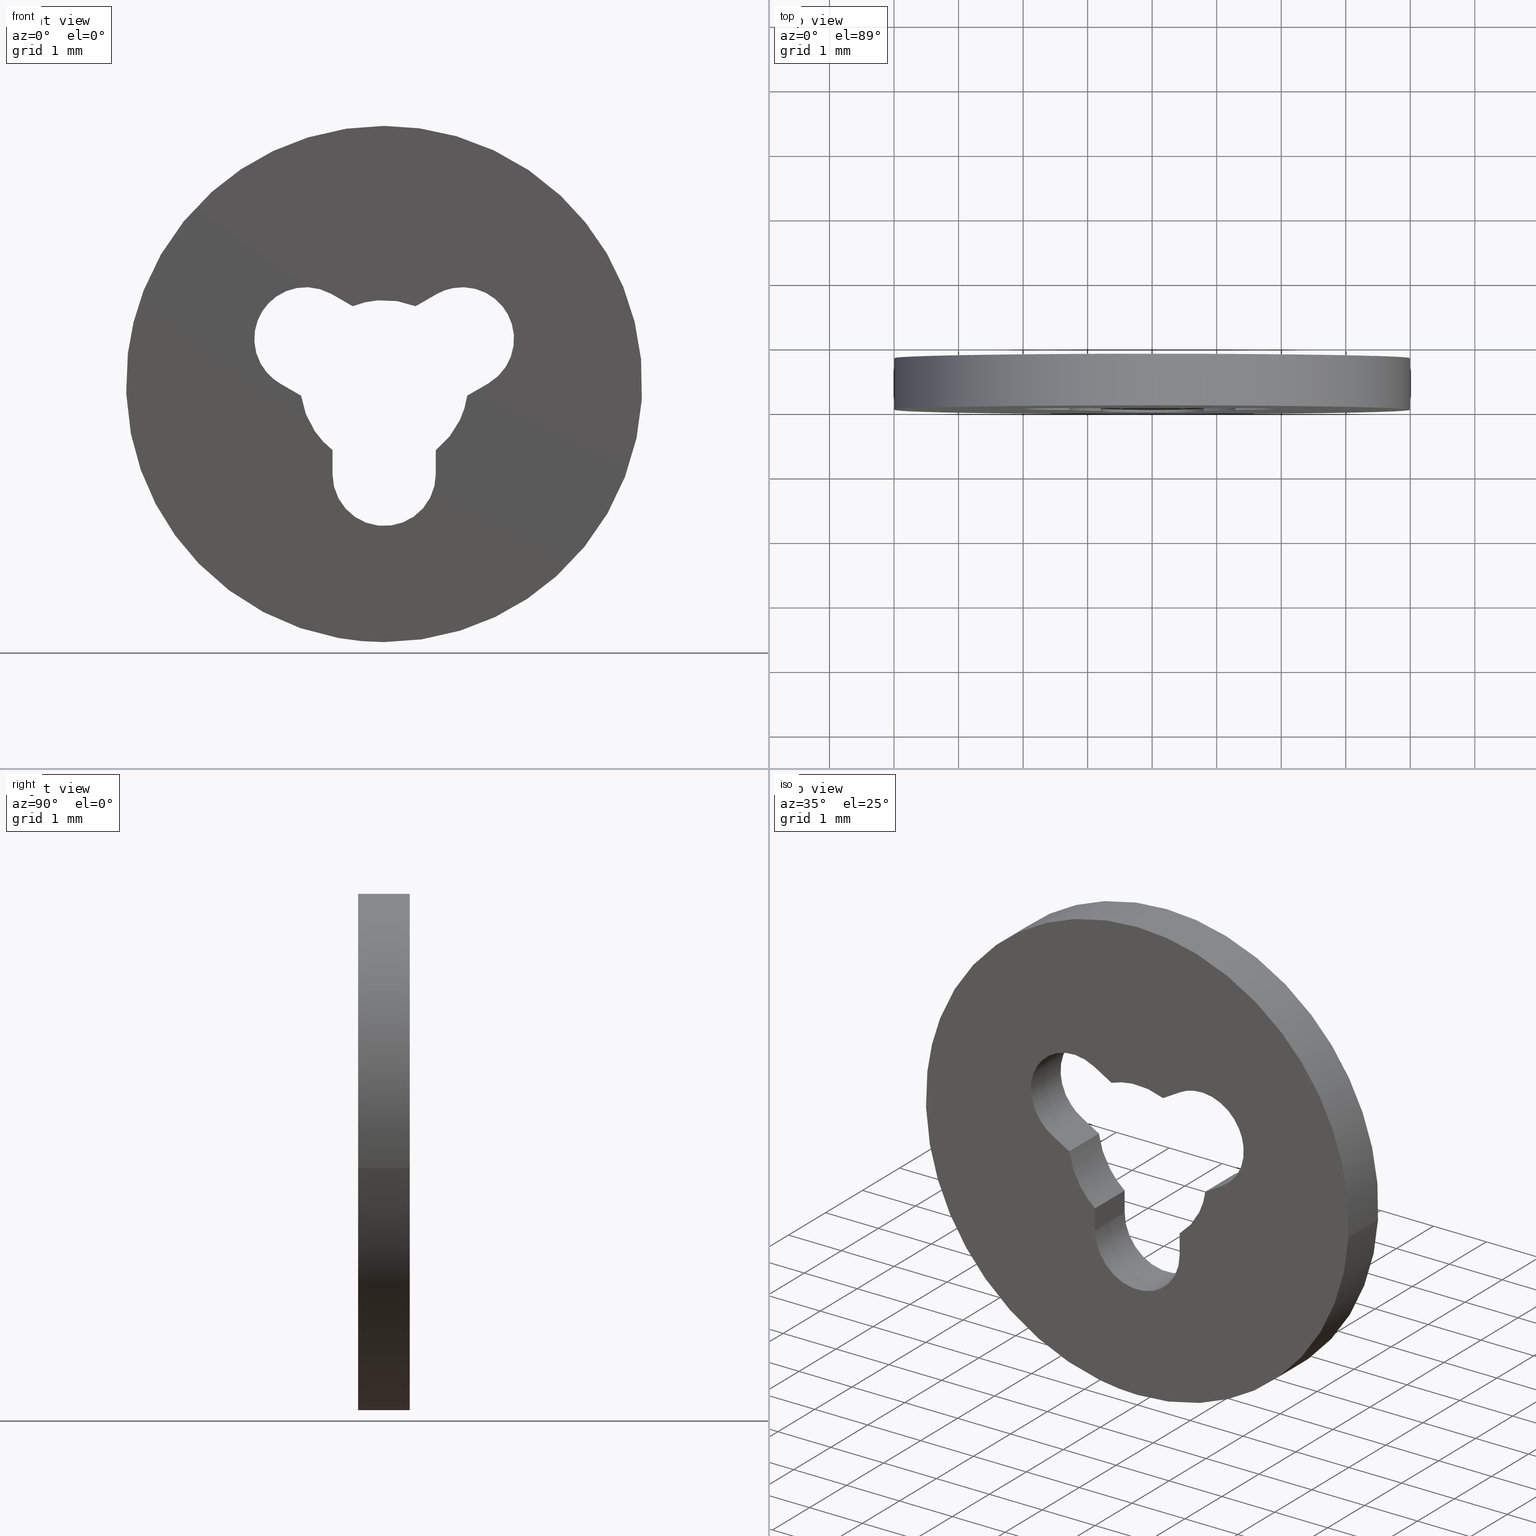
[diagram: canonical four-view strip — front | top / right | iso, engineering-drawing reading convention]
A machine part, canonical four-view strip (front | top / right | iso — engineering-drawing reading convention). The complete STEP part file that produces these views, byte-faithful:
ISO-10303-21;
HEADER;
/****************************************************************
 * Generated by software with PDE/Lib inside                    *
 * PDElib Version 4.4.1-0003, patched  Thursday August 19 11:58 *
 * International Technegroup Inc. (www.iti-oh.com)              *
 ****************************************************************/
FILE_DESCRIPTION((''),'2;1');
FILE_NAME('','2005-07-15T17:44:51',(''),(''),'','CADfix','');
FILE_SCHEMA(('AUTOMOTIVE_DESIGN'));
ENDSEC;
DATA;
#5=APPLICATION_CONTEXT('automotive design');
#6=APPLICATION_PROTOCOL_DEFINITION('Draft International Standard','automotive_design',1998,#5);
#7=PRODUCT_CONTEXT('None',#5,'mechanical');
#8=PRODUCT('washer','','None',(#7));
#9=PRODUCT_RELATED_PRODUCT_CATEGORY('part','description',(#8));
#10=PRODUCT_DEFINITION_FORMATION('None','None',#8);
#11=PRODUCT_DEFINITION_CONTEXT('part definition',#5,'design');
#12=PRODUCT_DEFINITION('None','None',#10,#11);
#18=(NAMED_UNIT(*)PLANE_ANGLE_UNIT()SI_UNIT($,.RADIAN.));
#19=DIMENSIONAL_EXPONENTS(0.0,0.0,0.0,0.0,0.0,0.0,0.0);
#20=PLANE_ANGLE_MEASURE_WITH_UNIT(PLANE_ANGLE_MEASURE(0.017453292500000),#18);
#24=(CONVERSION_BASED_UNIT('DEGREE',#20)NAMED_UNIT(#19)PLANE_ANGLE_UNIT());
#28=(NAMED_UNIT(*)SI_UNIT($,.STERADIAN.)SOLID_ANGLE_UNIT());
#32=(LENGTH_UNIT()NAMED_UNIT(*)SI_UNIT(.MILLI.,.METRE.));
#34=UNCERTAINTY_MEASURE_WITH_UNIT(LENGTH_MEASURE(0.001000000000000),#32,'DISTANCE_ACCURACY_VALUE','');
#36=(GEOMETRIC_REPRESENTATION_CONTEXT(3)GLOBAL_UNCERTAINTY_ASSIGNED_CONTEXT((#34))GLOBAL_UNIT_ASSIGNED_CONTEXT((#24,#28,#32))REPRESENTATION_CONTEXT('None','None'));
#37=AXIS2_PLACEMENT_3D('',#38,#39,#40);
#38=CARTESIAN_POINT('',(0.0,0.0,0.0));
#39=DIRECTION('',(0.0,0.0,1.0));
#40=DIRECTION('',(1.0,0.0,0.0));
#41=ADVANCED_BREP_SHAPE_REPRESENTATION('',(#37,#797),#36);
#42=PRODUCT_DEFINITION_SHAPE('','',#12);
#43=SHAPE_DEFINITION_REPRESENTATION(#42,#41);
#44=CARTESIAN_POINT('',(-3.972038105454666,0.820000000000024,0.472136938627034));
#45=CARTESIAN_POINT('',(-3.985550461794422,0.820000000000024,0.358458914551911));
#46=CARTESIAN_POINT('',(-3.992539193687467,0.820000000000024,0.244194158139428));
#47=CARTESIAN_POINT('',(-4.236733351826894,0.820000000000024,-3.748345035548039));
#48=CARTESIAN_POINT('',(-0.244194158139428,0.820000000000024,-3.992539193687467));
#49=CARTESIAN_POINT('',(3.748345035548039,0.820000000000024,-4.236733351826894));
#50=CARTESIAN_POINT('',(3.992539193687467,0.820000000000024,-0.244194158139428));
#51=CARTESIAN_POINT('',(-3.972038105454666,-0.020500000000001,0.472136938627034));
#52=CARTESIAN_POINT('',(-3.985550461794422,-0.020500000000001,0.358458914551911));
#53=CARTESIAN_POINT('',(-3.992539193687467,-0.020500000000001,0.244194158139428));
#54=CARTESIAN_POINT('',(-4.236733351826894,-0.020500000000001,-3.748345035548039));
#55=CARTESIAN_POINT('',(-0.244194158139428,-0.020500000000001,-3.992539193687467));
#56=CARTESIAN_POINT('',(3.748345035548039,-0.020500000000001,-4.236733351826894));
#57=CARTESIAN_POINT('',(3.992539193687467,-0.020500000000001,-0.244194158139428));
#65=(BOUNDED_SURFACE()B_SPLINE_SURFACE(2,1,((#44,#51),(#45,#52),(#46,#53),(#47,#54),(#48,#55),(#49,#56),(#50,#57)),.UNSPECIFIED.,.F.,.F.,.U.)B_SPLINE_SURFACE_WITH_KNOTS((3,2,2,3),(2,2),(0.0,0.265096679918781,6.892513677888299,13.519930675857820),(0.0,1.0),.UNSPECIFIED.)GEOMETRIC_REPRESENTATION_ITEM()RATIONAL_B_SPLINE_SURFACE(((0.977505800795127,0.977505800795127),(0.988284271247462,0.988284271247462),(1.0,1.0),(0.707106781186548,0.707106781186548),(1.0,1.0),(0.707106781186548,0.707106781186548),(1.0,1.0)))REPRESENTATION_ITEM('')SURFACE());
#66=CARTESIAN_POINT('',(-3.972038406107942,1.940217E-014,0.472134409249084));
#67=VERTEX_POINT('',#66);
#68=CARTESIAN_POINT('',(0.0,0.0,-4.0));
#69=VERTEX_POINT('',#68);
#70=CARTESIAN_POINT('',(-3.972038406107942,1.940217E-014,0.472134409249084));
#71=CARTESIAN_POINT('',(-4.000000000000001,0.0,0.236895200548656));
#72=CARTESIAN_POINT('',(-4.0,0.0,0.0));
#73=CARTESIAN_POINT('',(-4.000000000000000,0.0,-4.000000000000000));
#74=CARTESIAN_POINT('',(0.0,0.0,-4.0));
#82=(BOUNDED_CURVE()B_SPLINE_CURVE(2,(#70,#71,#72,#73,#74),.UNSPECIFIED.,.F.,.U.)B_SPLINE_CURVE_WITH_KNOTS((3,2,3),(0.229562581136241,0.250000000000000,0.500000000000000),.UNSPECIFIED.)CURVE()GEOMETRIC_REPRESENTATION_ITEM()RATIONAL_B_SPLINE_CURVE((0.956026965128767,0.976056074419019,1.0,0.707106781186548,1.0))REPRESENTATION_ITEM(''));
#83=EDGE_CURVE('',#67,#69,#82,.T.);
#84=ORIENTED_EDGE('',*,*,#83,.F.);
#85=CARTESIAN_POINT('',(-3.972038402399532,0.800000000000023,0.472134440447886));
#86=VERTEX_POINT('',#85);
#87=CARTESIAN_POINT('',(-3.972038402399532,0.800000000000023,0.472134440447886));
#88=CARTESIAN_POINT('',(-3.972038406107942,1.940217E-014,0.472134409249084));
#89=QUASI_UNIFORM_CURVE('',1,(#87,#88),.UNSPECIFIED.,.F.,.U.);
#90=EDGE_CURVE('',#86,#67,#89,.T.);
#91=ORIENTED_EDGE('',*,*,#90,.F.);
#92=CARTESIAN_POINT('',(0.0,0.800000000000023,-4.0));
#93=VERTEX_POINT('',#92);
#94=CARTESIAN_POINT('',(-3.972038402399532,0.800000000000023,0.472134440447886));
#95=CARTESIAN_POINT('',(-4.000000000000000,0.800000000000023,0.236895216312969));
#96=CARTESIAN_POINT('',(-4.0,0.800000000000023,0.0));
#97=CARTESIAN_POINT('',(-4.000000000000000,0.800000000000023,-4.000000000000000));
#98=CARTESIAN_POINT('',(0.0,0.800000000000023,-4.0));
#106=(BOUNDED_CURVE()B_SPLINE_CURVE(2,(#94,#95,#96,#97,#98),.UNSPECIFIED.,.F.,.U.)B_SPLINE_CURVE_WITH_KNOTS((3,2,3),(0.229562579808786,0.250000000000000,0.500000000000000),.UNSPECIFIED.)CURVE()GEOMETRIC_REPRESENTATION_ITEM()RATIONAL_B_SPLINE_CURVE((0.956026962526900,0.976056072863809,1.0,0.707106781186548,1.0))REPRESENTATION_ITEM(''));
#107=EDGE_CURVE('',#86,#93,#106,.T.);
#108=ORIENTED_EDGE('',*,*,#107,.T.);
#109=CARTESIAN_POINT('',(3.992539279994037,0.800000000000023,-0.244192747031311));
#110=VERTEX_POINT('',#109);
#111=CARTESIAN_POINT('',(0.0,0.800000000000023,-4.0));
#112=CARTESIAN_POINT('',(3.762825600026705,0.800000000000023,-4.0));
#113=CARTESIAN_POINT('',(3.992539279994037,0.800000000000023,-0.244192747031311));
#121=(BOUNDED_CURVE()B_SPLINE_CURVE(2,(#111,#112,#113),.UNSPECIFIED.,.F.,.U.)B_SPLINE_CURVE_WITH_KNOTS((3,3),(0.500000000000000,0.739333023226263),.UNSPECIFIED.)CURVE()GEOMETRIC_REPRESENTATION_ITEM()RATIONAL_B_SPLINE_CURVE((1.0,0.719603921835620,0.976072172374189))REPRESENTATION_ITEM(''));
#122=EDGE_CURVE('',#93,#110,#121,.T.);
#123=ORIENTED_EDGE('',*,*,#122,.T.);
#124=CARTESIAN_POINT('',(3.992539281071392,1.277450E-014,-0.244192729416499));
#125=VERTEX_POINT('',#124);
#126=CARTESIAN_POINT('',(3.992539279994037,0.800000000000023,-0.244192747031311));
#127=CARTESIAN_POINT('',(3.992539281071392,1.277450E-014,-0.244192729416499));
#128=QUASI_UNIFORM_CURVE('',1,(#126,#127),.UNSPECIFIED.,.F.,.U.);
#129=EDGE_CURVE('',#110,#125,#128,.T.);
#130=ORIENTED_EDGE('',*,*,#129,.T.);
#131=CARTESIAN_POINT('',(0.0,0.0,-4.0));
#132=CARTESIAN_POINT('',(3.762825616659059,0.0,-4.000000000000001));
#133=CARTESIAN_POINT('',(3.992539281071392,1.277450E-014,-0.244192729416499));
#141=(BOUNDED_CURVE()B_SPLINE_CURVE(2,(#131,#132,#133),.UNSPECIFIED.,.F.,.U.)B_SPLINE_CURVE_WITH_KNOTS((3,3),(0.500000000000000,0.739333023987528),.UNSPECIFIED.)CURVE()GEOMETRIC_REPRESENTATION_ITEM()RATIONAL_B_SPLINE_CURVE((1.0,0.719603920943743,0.976072174005725))REPRESENTATION_ITEM(''));
#142=EDGE_CURVE('',#69,#125,#141,.T.);
#143=ORIENTED_EDGE('',*,*,#142,.F.);
#144=EDGE_LOOP('',(#84,#91,#108,#123,#130,#143));
#145=FACE_OUTER_BOUND('',#144,.T.);
#146=ADVANCED_FACE('',(#145),#65,.T.);
#147=CARTESIAN_POINT('',(3.992539193687467,0.820000000000024,-0.244194158139428));
#148=CARTESIAN_POINT('',(4.236733351826894,0.820000000000024,3.748345035548039));
#149=CARTESIAN_POINT('',(0.244194158139428,0.820000000000024,3.992539193687467));
#150=CARTESIAN_POINT('',(-3.526173963358004,0.820000000000024,4.223144786930110));
#151=CARTESIAN_POINT('',(-3.972038105454666,0.820000000000024,0.472136938627034));
#152=CARTESIAN_POINT('',(3.992539193687467,-0.020500000000001,-0.244194158139428));
#153=CARTESIAN_POINT('',(4.236733351826894,-0.020500000000001,3.748345035548039));
#154=CARTESIAN_POINT('',(0.244194158139428,-0.020500000000001,3.992539193687467));
#155=CARTESIAN_POINT('',(-3.526173963358004,-0.020500000000001,4.223144786930110));
#156=CARTESIAN_POINT('',(-3.972038105454666,-0.020500000000001,0.472136938627034));
#164=(BOUNDED_SURFACE()B_SPLINE_SURFACE(2,1,((#147,#152),(#148,#153),(#149,#154),(#150,#155),(#151,#156)),.UNSPECIFIED.,.F.,.F.,.U.)B_SPLINE_SURFACE_WITH_KNOTS((3,2,3),(2,2),(0.0,6.627416997969518,12.989737316020260),(0.0,1.0),.UNSPECIFIED.)GEOMETRIC_REPRESENTATION_ITEM()RATIONAL_B_SPLINE_SURFACE(((1.0,1.0),(0.707106781186548,0.707106781186548),(1.0,1.0),(0.718822509939086,0.718822509939086),(0.977505800795127,0.977505800795127)))REPRESENTATION_ITEM('')SURFACE());
#165=CARTESIAN_POINT('',(0.0,0.0,4.0));
#166=VERTEX_POINT('',#165);
#167=CARTESIAN_POINT('',(0.0,0.0,4.0));
#168=CARTESIAN_POINT('',(-3.552700382076046,0.0,4.0));
#169=CARTESIAN_POINT('',(-3.972038406107942,1.940217E-014,0.472134409249084));
#177=(BOUNDED_CURVE()B_SPLINE_CURVE(2,(#167,#168,#169),.UNSPECIFIED.,.F.,.U.)B_SPLINE_CURVE_WITH_KNOTS((3,3),(0.0,0.229562581136241),.UNSPECIFIED.)CURVE()GEOMETRIC_REPRESENTATION_ITEM()RATIONAL_B_SPLINE_CURVE((1.0,0.731050706767529,0.956026965128767))REPRESENTATION_ITEM(''));
#178=EDGE_CURVE('',#166,#67,#177,.T.);
#179=ORIENTED_EDGE('',*,*,#178,.F.);
#180=CARTESIAN_POINT('',(3.992539281071392,1.277450E-014,-0.244192729416499));
#181=CARTESIAN_POINT('',(4.000000000000001,0.0,-0.122210336829911));
#182=CARTESIAN_POINT('',(4.0,0.0,0.0));
#183=CARTESIAN_POINT('',(4.000000000000000,0.0,4.000000000000000));
#184=CARTESIAN_POINT('',(0.0,0.0,4.0));
#192=(BOUNDED_CURVE()B_SPLINE_CURVE(2,(#180,#181,#182,#183,#184),.UNSPECIFIED.,.F.,.U.)B_SPLINE_CURVE_WITH_KNOTS((3,2,3),(0.739333023987528,0.750000000000000,1.0),.UNSPECIFIED.)CURVE()GEOMETRIC_REPRESENTATION_ITEM()RATIONAL_B_SPLINE_CURVE((0.976072174005725,0.987502860242804,1.0,0.707106781186548,1.0))REPRESENTATION_ITEM(''));
#193=EDGE_CURVE('',#125,#166,#192,.T.);
#194=ORIENTED_EDGE('',*,*,#193,.F.);
#195=ORIENTED_EDGE('',*,*,#129,.F.);
#196=CARTESIAN_POINT('',(0.0,0.800000000000023,4.0));
#197=VERTEX_POINT('',#196);
#198=CARTESIAN_POINT('',(3.992539279994037,0.800000000000023,-0.244192747031311));
#199=CARTESIAN_POINT('',(4.0,0.800000000000023,-0.122210345662012));
#200=CARTESIAN_POINT('',(4.0,0.800000000000023,0.0));
#201=CARTESIAN_POINT('',(4.000000000000000,0.800000000000023,4.000000000000000));
#202=CARTESIAN_POINT('',(0.0,0.800000000000023,4.0));
#210=(BOUNDED_CURVE()B_SPLINE_CURVE(2,(#198,#199,#200,#201,#202),.UNSPECIFIED.,.F.,.U.)B_SPLINE_CURVE_WITH_KNOTS((3,2,3),(0.739333023226263,0.750000000000000,1.0),.UNSPECIFIED.)CURVE()GEOMETRIC_REPRESENTATION_ITEM()RATIONAL_B_SPLINE_CURVE((0.976072172374189,0.987502859350927,1.0,0.707106781186548,1.0))REPRESENTATION_ITEM(''));
#211=EDGE_CURVE('',#110,#197,#210,.T.);
#212=ORIENTED_EDGE('',*,*,#211,.T.);
#213=CARTESIAN_POINT('',(0.0,0.800000000000023,4.0));
#214=CARTESIAN_POINT('',(-3.552700353974541,0.800000000000023,4.0));
#215=CARTESIAN_POINT('',(-3.972038402399532,0.800000000000023,0.472134440447886));
#223=(BOUNDED_CURVE()B_SPLINE_CURVE(2,(#213,#214,#215),.UNSPECIFIED.,.F.,.U.)B_SPLINE_CURVE_WITH_KNOTS((3,3),(0.0,0.229562579808786),.UNSPECIFIED.)CURVE()GEOMETRIC_REPRESENTATION_ITEM()RATIONAL_B_SPLINE_CURVE((1.0,0.731050708322738,0.956026962526900))REPRESENTATION_ITEM(''));
#224=EDGE_CURVE('',#197,#86,#223,.T.);
#225=ORIENTED_EDGE('',*,*,#224,.T.);
#226=ORIENTED_EDGE('',*,*,#90,.T.);
#227=EDGE_LOOP('',(#179,#194,#195,#212,#225,#226));
#228=FACE_OUTER_BOUND('',#227,.T.);
#229=ADVANCED_FACE('',(#228),#164,.T.);
#230=CARTESIAN_POINT('',(1.628633255187608,-0.039959998449446,0.016470334379051));
#231=CARTESIAN_POINT('',(1.271175532941079,-0.039959998449446,-0.189865261600788));
#232=CARTESIAN_POINT('',(1.628633255187608,0.839960019907141,0.016470334379051));
#233=CARTESIAN_POINT('',(1.271175532941079,0.839960019907141,-0.189865261600788));
#234=B_SPLINE_SURFACE_WITH_KNOTS('',1,1,((#230,#232),(#231,#233)),.UNSPECIFIED.,.F.,.F.,.U.,(2,2),(2,2),(0.0,0.412735267892183),(0.041708334948495,0.958291687403247),.UNSPECIFIED.);
#235=CARTESIAN_POINT('',(1.287408869895386,0.0,-0.180494880023472));
#236=VERTEX_POINT('',#235);
#237=CARTESIAN_POINT('',(1.612399990874480,0.0,0.007099994732456));
#238=VERTEX_POINT('',#237);
#239=CARTESIAN_POINT('',(1.287408869895386,0.0,-0.180494880023472));
#240=CARTESIAN_POINT('',(1.612399990874480,0.0,0.007099994732456));
#241=QUASI_UNIFORM_CURVE('',1,(#239,#240),.UNSPECIFIED.,.F.,.U.);
#242=EDGE_CURVE('',#236,#238,#241,.T.);
#243=ORIENTED_EDGE('',*,*,#242,.T.);
#244=CARTESIAN_POINT('',(1.612399990874480,0.800000000000000,0.007099994732456));
#245=VERTEX_POINT('',#244);
#246=CARTESIAN_POINT('',(1.612399990874480,0.800000000000000,0.007099994732456));
#247=CARTESIAN_POINT('',(1.612399990874480,0.0,0.007099994732456));
#248=QUASI_UNIFORM_CURVE('',1,(#246,#247),.UNSPECIFIED.,.F.,.U.);
#249=EDGE_CURVE('',#245,#238,#248,.T.);
#250=ORIENTED_EDGE('',*,*,#249,.F.);
#251=CARTESIAN_POINT('',(1.287408869895384,0.800000000000023,-0.180494880023472));
#252=VERTEX_POINT('',#251);
#253=CARTESIAN_POINT('',(1.287408869895384,0.800000000000023,-0.180494880023472));
#254=CARTESIAN_POINT('',(1.612399990874480,0.800000000000000,0.007099994732456));
#255=QUASI_UNIFORM_CURVE('',1,(#253,#254),.UNSPECIFIED.,.F.,.U.);
#256=EDGE_CURVE('',#252,#245,#255,.T.);
#257=ORIENTED_EDGE('',*,*,#256,.F.);
#258=CARTESIAN_POINT('',(1.287408869895384,0.800000000000023,-0.180494880023472));
#259=CARTESIAN_POINT('',(1.287408869895386,0.0,-0.180494880023472));
#260=QUASI_UNIFORM_CURVE('',1,(#258,#259),.UNSPECIFIED.,.F.,.U.);
#261=EDGE_CURVE('',#252,#236,#260,.T.);
#262=ORIENTED_EDGE('',*,*,#261,.T.);
#263=EDGE_LOOP('',(#243,#250,#257,#262));
#264=FACE_OUTER_BOUND('',#263,.T.);
#265=ADVANCED_FACE('',(#264),#234,.F.);
#266=CARTESIAN_POINT('',(1.293228380906160,0.820000000000024,-0.132515488977071));
#267=CARTESIAN_POINT('',(1.293228380906160,-0.020500000000001,-0.132515488977071));
#268=CARTESIAN_POINT('',(1.233791128028652,0.820000000000024,-0.712568001310846));
#269=CARTESIAN_POINT('',(1.233791128028652,-0.020500000000001,-0.712568001310846));
#270=CARTESIAN_POINT('',(0.761070607472883,0.820000000000024,-1.053931463825261));
#271=CARTESIAN_POINT('',(0.761070607472883,-0.020500000000001,-1.053931463825261));
#279=(BOUNDED_SURFACE()B_SPLINE_SURFACE(1,2,((#266,#268,#270),(#267,#269,#271)),.UNSPECIFIED.,.F.,.F.,.U.)B_SPLINE_SURFACE_WITH_KNOTS((2,2),(3,3),(0.0,1.0),(0.006691904131323,0.952492191132158),.UNSPECIFIED.)GEOMETRIC_REPRESENTATION_ITEM()RATIONAL_B_SPLINE_SURFACE(((0.998704944893718,0.907803194254828,0.991183809064949),(0.998704944893718,0.907803194254828,0.991183809064949)))REPRESENTATION_ITEM('')SURFACE());
#280=CARTESIAN_POINT('',(0.800000000000010,0.0,-1.024700000000000));
#281=VERTEX_POINT('',#280);
#282=CARTESIAN_POINT('',(0.800000000000010,0.0,-1.024700000000000));
#283=CARTESIAN_POINT('',(1.214413189115295,0.0,-0.701158403634234));
#284=CARTESIAN_POINT('',(1.287408869895386,0.0,-0.180494880023472));
#292=(BOUNDED_CURVE()B_SPLINE_CURVE(2,(#282,#283,#284),.UNSPECIFIED.,.F.,.U.)CURVE()GEOMETRIC_REPRESENTATION_ITEM()QUASI_UNIFORM_CURVE()RATIONAL_B_SPLINE_CURVE((1.0,0.927054981489884,1.0))REPRESENTATION_ITEM(''));
#293=EDGE_CURVE('',#281,#236,#292,.T.);
#294=ORIENTED_EDGE('',*,*,#293,.T.);
#295=ORIENTED_EDGE('',*,*,#261,.F.);
#296=CARTESIAN_POINT('',(0.800000000000010,0.800000000000023,-1.024700000000000));
#297=VERTEX_POINT('',#296);
#298=CARTESIAN_POINT('',(0.800000000000010,0.800000000000023,-1.024700000000000));
#299=CARTESIAN_POINT('',(1.214413189115293,0.800000000000023,-0.701158403634233));
#300=CARTESIAN_POINT('',(1.287408869895384,0.800000000000023,-0.180494880023472));
#308=(BOUNDED_CURVE()B_SPLINE_CURVE(2,(#298,#299,#300),.UNSPECIFIED.,.F.,.U.)CURVE()GEOMETRIC_REPRESENTATION_ITEM()QUASI_UNIFORM_CURVE()RATIONAL_B_SPLINE_CURVE((1.0,0.927054981489884,1.0))REPRESENTATION_ITEM(''));
#309=EDGE_CURVE('',#297,#252,#308,.T.);
#310=ORIENTED_EDGE('',*,*,#309,.F.);
#311=CARTESIAN_POINT('',(0.800000000000010,0.800000000000023,-1.024700000000000));
#312=CARTESIAN_POINT('',(0.800000000000010,0.0,-1.024700000000000));
#313=QUASI_UNIFORM_CURVE('',1,(#311,#312),.UNSPECIFIED.,.F.,.U.);
#314=EDGE_CURVE('',#297,#281,#313,.T.);
#315=ORIENTED_EDGE('',*,*,#314,.T.);
#316=EDGE_LOOP('',(#294,#295,#310,#315));
#317=FACE_OUTER_BOUND('',#316,.T.);
#318=ADVANCED_FACE('',(#317),#279,.F.);
#319=CARTESIAN_POINT('',(0.800000000000010,-0.039959998449446,-1.005953818501345));
#320=CARTESIAN_POINT('',(0.800000000000010,-0.039959998449446,-1.418746095559383));
#321=CARTESIAN_POINT('',(0.800000000000010,0.839960019907141,-1.005953818501345));
#322=CARTESIAN_POINT('',(0.800000000000010,0.839960019907141,-1.418746095559383));
#323=B_SPLINE_SURFACE_WITH_KNOTS('',1,1,((#319,#321),(#320,#322)),.UNSPECIFIED.,.F.,.F.,.U.,(2,2),(2,2),(0.0,0.412792277058038),(0.041708334948495,0.958291687403247),.UNSPECIFIED.);
#324=CARTESIAN_POINT('',(0.799999999999988,0.0,-1.399999860373652));
#325=VERTEX_POINT('',#324);
#326=CARTESIAN_POINT('',(0.799999999999988,0.0,-1.399999860373652));
#327=CARTESIAN_POINT('',(0.800000000000010,0.0,-1.024700000000000));
#328=QUASI_UNIFORM_CURVE('',1,(#326,#327),.UNSPECIFIED.,.F.,.U.);
#329=EDGE_CURVE('',#325,#281,#328,.T.);
#330=ORIENTED_EDGE('',*,*,#329,.T.);
#331=ORIENTED_EDGE('',*,*,#314,.F.);
#332=CARTESIAN_POINT('',(0.799999999999988,0.800000000000023,-1.399999860373652));
#333=VERTEX_POINT('',#332);
#334=CARTESIAN_POINT('',(0.799999999999988,0.800000000000023,-1.399999860373652));
#335=CARTESIAN_POINT('',(0.800000000000010,0.800000000000023,-1.024700000000000));
#336=QUASI_UNIFORM_CURVE('',1,(#334,#335),.UNSPECIFIED.,.F.,.U.);
#337=EDGE_CURVE('',#333,#297,#336,.T.);
#338=ORIENTED_EDGE('',*,*,#337,.F.);
#339=CARTESIAN_POINT('',(0.799999999999988,0.800000000000023,-1.399999860373652));
#340=CARTESIAN_POINT('',(0.799999999999988,0.0,-1.399999860373652));
#341=QUASI_UNIFORM_CURVE('',1,(#339,#340),.UNSPECIFIED.,.F.,.U.);
#342=EDGE_CURVE('',#333,#325,#341,.T.);
#343=ORIENTED_EDGE('',*,*,#342,.T.);
#344=EDGE_LOOP('',(#330,#331,#338,#343));
#345=FACE_OUTER_BOUND('',#344,.T.);
#346=ADVANCED_FACE('',(#345),#323,.F.);
#347=CARTESIAN_POINT('',(0.799238577265486,0.820000000000024,-1.365104490107732));
#348=CARTESIAN_POINT('',(0.799238577265486,-0.020500000000001,-1.365104490107732));
#349=CARTESIAN_POINT('',(0.836333596761906,0.820000000000024,-2.214720119668255));
#350=CARTESIAN_POINT('',(0.836333596761906,-0.020500000000001,-2.214720119668255));
#351=CARTESIAN_POINT('',(-0.013961925149828,0.820000000000024,-2.199878156125112));
#352=CARTESIAN_POINT('',(-0.013961925149828,-0.020500000000001,-2.199878156125112));
#353=CARTESIAN_POINT('',(-0.864257447061561,0.820000000000024,-2.185036192581969));
#354=CARTESIAN_POINT('',(-0.864257447061561,-0.020500000000001,-2.185036192581969));
#355=CARTESIAN_POINT('',(-0.797533866986502,0.820000000000024,-1.337232723417723));
#356=CARTESIAN_POINT('',(-0.797533866986502,-0.020500000000001,-1.337232723417723));
#364=(BOUNDED_SURFACE()B_SPLINE_SURFACE(1,2,((#347,#349,#351,#353,#355),(#348,#350,#352,#354,#356)),.UNSPECIFIED.,.F.,.F.,.U.)B_SPLINE_SURFACE_WITH_KNOTS((2,2),(3,2,3),(0.0,1.0),(0.0,1.0,2.0),.UNSPECIFIED.)GEOMETRIC_REPRESENTATION_ITEM()RATIONAL_B_SPLINE_SURFACE(((1.0,0.685182990326359,1.0,0.685182990326359,1.0),(1.0,0.685182990326359,1.0,0.685182990326359,1.0)))REPRESENTATION_ITEM('')SURFACE());
#365=CARTESIAN_POINT('',(-0.799999999999990,0.0,-1.400000000000000));
#366=VERTEX_POINT('',#365);
#367=CARTESIAN_POINT('',(-0.799999999999990,0.0,-1.400000000000000));
#368=CARTESIAN_POINT('',(-0.800000000000000,0.0,-1.861880246379778));
#369=CARTESIAN_POINT('',(-0.399999959693345,0.0,-2.092820346298607));
#370=CARTESIAN_POINT('',(0.000000080613311,0.0,-2.323760446217437));
#371=CARTESIAN_POINT('',(0.400000080613307,0.0,-2.092820276485431));
#372=CARTESIAN_POINT('',(0.800000080613303,0.0,-1.861880106753424));
#373=CARTESIAN_POINT('',(0.799999999999988,0.0,-1.399999860373652));
#381=(BOUNDED_CURVE()B_SPLINE_CURVE(2,(#367,#368,#369,#370,#371,#372,#373),.UNSPECIFIED.,.F.,.U.)B_SPLINE_CURVE_WITH_KNOTS((3,2,2,3),(0.0,0.333333333333333,0.666666666666667,1.0),.UNSPECIFIED.)CURVE()GEOMETRIC_REPRESENTATION_ITEM()RATIONAL_B_SPLINE_CURVE((1.0,0.866025389240027,1.0,0.866025389240027,1.0,0.866025389240027,1.0))REPRESENTATION_ITEM(''));
#382=EDGE_CURVE('',#366,#325,#381,.T.);
#383=ORIENTED_EDGE('',*,*,#382,.T.);
#384=ORIENTED_EDGE('',*,*,#342,.F.);
#385=CARTESIAN_POINT('',(-0.799999999999990,0.800000000000023,-1.400000000000000));
#386=VERTEX_POINT('',#385);
#387=CARTESIAN_POINT('',(-0.799999999999990,0.800000000000023,-1.400000000000000));
#388=CARTESIAN_POINT('',(-0.800000000000000,0.800000000000023,-1.861880246379778));
#389=CARTESIAN_POINT('',(-0.399999959693345,0.800000000000023,-2.092820346298607));
#390=CARTESIAN_POINT('',(0.000000080613311,0.800000000000023,-2.323760446217437));
#391=CARTESIAN_POINT('',(0.400000080613307,0.800000000000023,-2.092820276485431));
#392=CARTESIAN_POINT('',(0.800000080613303,0.800000000000023,-1.861880106753424));
#393=CARTESIAN_POINT('',(0.799999999999988,0.800000000000023,-1.399999860373652));
#401=(BOUNDED_CURVE()B_SPLINE_CURVE(2,(#387,#388,#389,#390,#391,#392,#393),.UNSPECIFIED.,.F.,.U.)B_SPLINE_CURVE_WITH_KNOTS((3,2,2,3),(0.0,0.333333333333333,0.666666666666667,1.0),.UNSPECIFIED.)CURVE()GEOMETRIC_REPRESENTATION_ITEM()RATIONAL_B_SPLINE_CURVE((1.0,0.866025389240027,1.0,0.866025389240027,1.0,0.866025389240027,1.0))REPRESENTATION_ITEM(''));
#402=EDGE_CURVE('',#386,#333,#401,.T.);
#403=ORIENTED_EDGE('',*,*,#402,.F.);
#404=CARTESIAN_POINT('',(-0.799999999999990,0.800000000000023,-1.400000000000000));
#405=CARTESIAN_POINT('',(-0.799999999999990,0.0,-1.400000000000000));
#406=QUASI_UNIFORM_CURVE('',1,(#404,#405),.UNSPECIFIED.,.F.,.U.);
#407=EDGE_CURVE('',#386,#366,#406,.T.);
#408=ORIENTED_EDGE('',*,*,#407,.T.);
#409=EDGE_LOOP('',(#383,#384,#403,#408));
#410=FACE_OUTER_BOUND('',#409,.T.);
#411=ADVANCED_FACE('',(#410),#364,.F.);
#412=CARTESIAN_POINT('',(-0.799999999999990,-0.039959998449446,-1.418746545837067));
#413=CARTESIAN_POINT('',(-0.799999999999990,-0.039959998449446,-1.005946689351444));
#414=CARTESIAN_POINT('',(-0.799999999999990,0.839960019907141,-1.418746545837067));
#415=CARTESIAN_POINT('',(-0.799999999999990,0.839960019907141,-1.005946689351444));
#416=B_SPLINE_SURFACE_WITH_KNOTS('',1,1,((#412,#414),(#413,#415)),.UNSPECIFIED.,.F.,.F.,.U.,(2,2),(2,2),(0.0,0.412799856485624),(0.041708334948495,0.958291687403247),.UNSPECIFIED.);
#417=CARTESIAN_POINT('',(-0.800002281232923,0.0,-1.024693295587572));
#418=VERTEX_POINT('',#417);
#419=CARTESIAN_POINT('',(-0.800002281232923,0.0,-1.024693295587572));
#420=CARTESIAN_POINT('',(-0.799999999999990,0.0,-1.400000000000000));
#421=QUASI_UNIFORM_CURVE('',1,(#419,#420),.UNSPECIFIED.,.F.,.U.);
#422=EDGE_CURVE('',#418,#366,#421,.T.);
#423=ORIENTED_EDGE('',*,*,#422,.T.);
#424=ORIENTED_EDGE('',*,*,#407,.F.);
#425=CARTESIAN_POINT('',(-0.800002281232923,0.800000000000023,-1.024693295587572));
#426=VERTEX_POINT('',#425);
#427=CARTESIAN_POINT('',(-0.800002281232923,0.800000000000023,-1.024693295587572));
#428=CARTESIAN_POINT('',(-0.799999999999990,0.800000000000023,-1.400000000000000));
#429=QUASI_UNIFORM_CURVE('',1,(#427,#428),.UNSPECIFIED.,.F.,.U.);
#430=EDGE_CURVE('',#426,#386,#429,.T.);
#431=ORIENTED_EDGE('',*,*,#430,.F.);
#432=CARTESIAN_POINT('',(-0.800002281232923,0.800000000000023,-1.024693295587572));
#433=CARTESIAN_POINT('',(-0.800002281232923,0.0,-1.024693295587572));
#434=QUASI_UNIFORM_CURVE('',1,(#432,#433),.UNSPECIFIED.,.F.,.U.);
#435=EDGE_CURVE('',#426,#418,#434,.T.);
#436=ORIENTED_EDGE('',*,*,#435,.T.);
#437=EDGE_LOOP('',(#423,#424,#431,#436));
#438=FACE_OUTER_BOUND('',#437,.T.);
#439=ADVANCED_FACE('',(#438),#416,.F.);
#440=CARTESIAN_POINT('',(-0.761362592940663,0.820000000000024,-1.053720552172477));
#441=CARTESIAN_POINT('',(-0.761362592940663,-0.020500000000001,-1.053720552172477));
#442=CARTESIAN_POINT('',(-1.233951651350491,0.820000000000024,-0.712252759630648));
#443=CARTESIAN_POINT('',(-1.233951651350491,-0.020500000000001,-0.712252759630648));
#444=CARTESIAN_POINT('',(-1.293257347522966,0.820000000000024,-0.132232496300499));
#445=CARTESIAN_POINT('',(-1.293257347522966,-0.020500000000001,-0.132232496300499));
#453=(BOUNDED_SURFACE()B_SPLINE_SURFACE(1,2,((#440,#442,#444),(#441,#443,#445)),.UNSPECIFIED.,.F.,.F.,.U.)B_SPLINE_SURFACE_WITH_KNOTS((2,2),(3,3),(0.0,1.0),(0.006756375219114,0.952489124004357),.UNSPECIFIED.)GEOMETRIC_REPRESENTATION_ITEM()RATIONAL_B_SPLINE_SURFACE(((0.998692552950375,0.907809172694319,0.991183268278192),(0.998692552950375,0.907809172694319,0.991183268278192)))REPRESENTATION_ITEM('')SURFACE());
#454=CARTESIAN_POINT('',(-1.287400062812804,0.0,-0.180557686819436));
#455=VERTEX_POINT('',#454);
#456=CARTESIAN_POINT('',(-1.287400062812805,0.0,-0.180557686819436));
#457=CARTESIAN_POINT('',(-1.214383390528302,0.0,-0.701176166936854));
#458=CARTESIAN_POINT('',(-0.800002281232923,0.0,-1.024693295587572));
#466=(BOUNDED_CURVE()B_SPLINE_CURVE(2,(#456,#457,#458),.UNSPECIFIED.,.F.,.U.)CURVE()GEOMETRIC_REPRESENTATION_ITEM()QUASI_UNIFORM_CURVE()RATIONAL_B_SPLINE_CURVE((1.0,0.927064980880653,1.0))REPRESENTATION_ITEM(''));
#467=EDGE_CURVE('',#455,#418,#466,.T.);
#468=ORIENTED_EDGE('',*,*,#467,.T.);
#469=ORIENTED_EDGE('',*,*,#435,.F.);
#470=CARTESIAN_POINT('',(-1.287400062812804,0.800000000000023,-0.180557686819436));
#471=VERTEX_POINT('',#470);
#472=CARTESIAN_POINT('',(-1.287400062812805,0.800000000000023,-0.180557686819436));
#473=CARTESIAN_POINT('',(-1.214383390528302,0.800000000000023,-0.701176166936854));
#474=CARTESIAN_POINT('',(-0.800002281232923,0.800000000000023,-1.024693295587572));
#482=(BOUNDED_CURVE()B_SPLINE_CURVE(2,(#472,#473,#474),.UNSPECIFIED.,.F.,.U.)CURVE()GEOMETRIC_REPRESENTATION_ITEM()QUASI_UNIFORM_CURVE()RATIONAL_B_SPLINE_CURVE((1.0,0.927064980880653,1.0))REPRESENTATION_ITEM(''));
#483=EDGE_CURVE('',#471,#426,#482,.T.);
#484=ORIENTED_EDGE('',*,*,#483,.F.);
#485=CARTESIAN_POINT('',(-1.287400062812804,0.800000000000023,-0.180557686819436));
#486=CARTESIAN_POINT('',(-1.287400062812804,0.0,-0.180557686819436));
#487=QUASI_UNIFORM_CURVE('',1,(#485,#486),.UNSPECIFIED.,.F.,.U.);
#488=EDGE_CURVE('',#471,#455,#487,.T.);
#489=ORIENTED_EDGE('',*,*,#488,.T.);
#490=EDGE_LOOP('',(#468,#469,#484,#489));
#491=FACE_OUTER_BOUND('',#490,.T.);
#492=ADVANCED_FACE('',(#491),#453,.F.);
#493=CARTESIAN_POINT('',(-1.271161281178105,-0.039959998449446,-0.189931211233810));
#494=CARTESIAN_POINT('',(-1.628738703155963,-0.039959998449446,0.016473479114021));
#495=CARTESIAN_POINT('',(-1.271161281178105,0.839960019907141,-0.189931211233810));
#496=CARTESIAN_POINT('',(-1.628738703155963,0.839960019907141,0.016473479114021));
#497=B_SPLINE_SURFACE_WITH_KNOTS('',1,1,((#493,#495),(#494,#496)),.UNSPECIFIED.,.F.,.F.,.U.,(2,2),(2,2),(0.0,0.412873478084891),(0.041708334948495,0.958291687403247),.UNSPECIFIED.);
#498=CARTESIAN_POINT('',(-1.612500000000000,0.0,0.007099999999994));
#499=VERTEX_POINT('',#498);
#500=CARTESIAN_POINT('',(-1.612500000000000,0.0,0.007099999999994));
#501=CARTESIAN_POINT('',(-1.287400062812804,0.0,-0.180557686819436));
#502=QUASI_UNIFORM_CURVE('',1,(#500,#501),.UNSPECIFIED.,.F.,.U.);
#503=EDGE_CURVE('',#499,#455,#502,.T.);
#504=ORIENTED_EDGE('',*,*,#503,.T.);
#505=ORIENTED_EDGE('',*,*,#488,.F.);
#506=CARTESIAN_POINT('',(-1.612500000000000,0.800000000000023,0.007099999999994));
#507=VERTEX_POINT('',#506);
#508=CARTESIAN_POINT('',(-1.612500000000000,0.800000000000023,0.007099999999994));
#509=CARTESIAN_POINT('',(-1.287400062812804,0.800000000000023,-0.180557686819436));
#510=QUASI_UNIFORM_CURVE('',1,(#508,#509),.UNSPECIFIED.,.F.,.U.);
#511=EDGE_CURVE('',#507,#471,#510,.T.);
#512=ORIENTED_EDGE('',*,*,#511,.F.);
#513=CARTESIAN_POINT('',(-1.612500000000000,0.800000000000023,0.007099999999994));
#514=CARTESIAN_POINT('',(-1.612500000000000,0.0,0.007099999999994));
#515=QUASI_UNIFORM_CURVE('',1,(#513,#514),.UNSPECIFIED.,.F.,.U.);
#516=EDGE_CURVE('',#507,#499,#515,.T.);
#517=ORIENTED_EDGE('',*,*,#516,.T.);
#518=EDGE_LOOP('',(#504,#505,#512,#517));
#519=FACE_OUTER_BOUND('',#518,.T.);
#520=ADVANCED_FACE('',(#519),#497,.F.);
#521=CARTESIAN_POINT('',(-1.589743198719782,0.820000000000024,-0.005546802408356));
#522=CARTESIAN_POINT('',(-1.589743198719782,-0.020500000000001,-0.005546802408356));
#523=CARTESIAN_POINT('',(-2.333219605951958,0.820000000000024,0.391937266101206));
#524=CARTESIAN_POINT('',(-2.333219605951958,-0.020500000000001,0.391937266101206));
#525=CARTESIAN_POINT('',(-1.897369726827335,0.820000000000024,1.113592055939692));
#526=CARTESIAN_POINT('',(-1.897369726827335,-0.020500000000001,1.113592055939692));
#527=CARTESIAN_POINT('',(-1.461519847702711,0.820000000000024,1.835246845778179));
#528=CARTESIAN_POINT('',(-1.461519847702711,-0.020500000000001,1.835246845778179));
#529=CARTESIAN_POINT('',(-0.763664680875252,0.820000000000024,1.362225790261621));
#530=CARTESIAN_POINT('',(-0.763664680875252,-0.020500000000001,1.362225790261621));
#538=(BOUNDED_SURFACE()B_SPLINE_SURFACE(1,2,((#521,#523,#525,#527,#529),(#522,#524,#526,#528,#530)),.UNSPECIFIED.,.F.,.F.,.U.)B_SPLINE_SURFACE_WITH_KNOTS((2,2),(3,2,3),(0.0,1.0),(0.0,1.0,2.0),.UNSPECIFIED.)GEOMETRIC_REPRESENTATION_ITEM()RATIONAL_B_SPLINE_SURFACE(((1.0,0.688354575693754,1.0,0.688354575693754,1.0),(1.0,0.688354575693754,1.0,0.688354575693754,1.0)))REPRESENTATION_ITEM('')SURFACE());
#539=CARTESIAN_POINT('',(-0.817007166694730,0.0,1.395403062118780));
#540=VERTEX_POINT('',#539);
#541=CARTESIAN_POINT('',(-0.817007166694730,0.0,1.395403062118780));
#542=CARTESIAN_POINT('',(-1.510215076494561,0.0,1.789684260389432));
#543=CARTESIAN_POINT('',(-1.906699946760339,0.0,1.097734394308717));
#544=CARTESIAN_POINT('',(-2.303184817026117,0.0,0.405784528228002));
#545=CARTESIAN_POINT('',(-1.612499999999997,0.0,0.007099999999999));
#553=(BOUNDED_CURVE()B_SPLINE_CURVE(2,(#541,#542,#543,#544,#545),.UNSPECIFIED.,.F.,.U.)B_SPLINE_CURVE_WITH_KNOTS((3,2,3),(0.0,0.500000000000000,1.0),.UNSPECIFIED.)CURVE()GEOMETRIC_REPRESENTATION_ITEM()RATIONAL_B_SPLINE_CURVE((1.0,0.708230833594024,1.0,0.708230833594024,1.0))REPRESENTATION_ITEM(''));
#554=EDGE_CURVE('',#540,#499,#553,.T.);
#555=ORIENTED_EDGE('',*,*,#554,.T.);
#556=ORIENTED_EDGE('',*,*,#516,.F.);
#557=CARTESIAN_POINT('',(-0.817007166694730,0.800000000000023,1.395403062118780));
#558=VERTEX_POINT('',#557);
#559=CARTESIAN_POINT('',(-0.817007166694730,0.800000000000023,1.395403062118780));
#560=CARTESIAN_POINT('',(-1.510215076494561,0.800000000000023,1.789684260389432));
#561=CARTESIAN_POINT('',(-1.906699946760339,0.800000000000023,1.097734394308717));
#562=CARTESIAN_POINT('',(-2.303184817026117,0.800000000000023,0.405784528228002));
#563=CARTESIAN_POINT('',(-1.612499999999997,0.800000000000023,0.007099999999999));
#571=(BOUNDED_CURVE()B_SPLINE_CURVE(2,(#559,#560,#561,#562,#563),.UNSPECIFIED.,.F.,.U.)B_SPLINE_CURVE_WITH_KNOTS((3,2,3),(0.0,0.500000000000000,1.0),.UNSPECIFIED.)CURVE()GEOMETRIC_REPRESENTATION_ITEM()RATIONAL_B_SPLINE_CURVE((1.0,0.708230833594024,1.0,0.708230833594024,1.0))REPRESENTATION_ITEM(''));
#572=EDGE_CURVE('',#558,#507,#571,.T.);
#573=ORIENTED_EDGE('',*,*,#572,.F.);
#574=CARTESIAN_POINT('',(-0.817007166694730,0.800000000000023,1.395403062118780));
#575=CARTESIAN_POINT('',(-0.817007166694730,0.0,1.395403062118780));
#576=QUASI_UNIFORM_CURVE('',1,(#574,#575),.UNSPECIFIED.,.F.,.U.);
#577=EDGE_CURVE('',#558,#540,#576,.T.);
#578=ORIENTED_EDGE('',*,*,#577,.T.);
#579=EDGE_LOOP('',(#555,#556,#573,#578));
#580=FACE_OUTER_BOUND('',#579,.T.);
#581=ADVANCED_FACE('',(#580),#538,.F.);
#582=CARTESIAN_POINT('',(-0.833464406176119,-0.039959998449446,1.404907750890030));
#583=CARTESIAN_POINT('',(-0.471075641699998,-0.039959998449446,1.195614301375674));
#584=CARTESIAN_POINT('',(-0.833464406176119,0.839960019907141,1.404907750890030));
#585=CARTESIAN_POINT('',(-0.471075641699998,0.839960019907141,1.195614301375674));
#586=B_SPLINE_SURFACE_WITH_KNOTS('',1,1,((#582,#584),(#583,#585)),.UNSPECIFIED.,.F.,.F.,.U.,(2,2),(2,2),(0.0,0.418484605007338),(0.041708334948495,0.958291687403247),.UNSPECIFIED.);
#587=CARTESIAN_POINT('',(-0.487532842886897,0.0,1.205118968030384));
#588=VERTEX_POINT('',#587);
#589=CARTESIAN_POINT('',(-0.487532842886897,0.0,1.205118968030384));
#590=CARTESIAN_POINT('',(-0.817007166694730,0.0,1.395403062118780));
#591=QUASI_UNIFORM_CURVE('',1,(#589,#590),.UNSPECIFIED.,.F.,.U.);
#592=EDGE_CURVE('',#588,#540,#591,.T.);
#593=ORIENTED_EDGE('',*,*,#592,.T.);
#594=ORIENTED_EDGE('',*,*,#577,.F.);
#595=CARTESIAN_POINT('',(-0.487532842886897,0.800000000000023,1.205118968030384));
#596=VERTEX_POINT('',#595);
#597=CARTESIAN_POINT('',(-0.487532842886897,0.800000000000023,1.205118968030384));
#598=CARTESIAN_POINT('',(-0.817007166694730,0.800000000000023,1.395403062118780));
#599=QUASI_UNIFORM_CURVE('',1,(#597,#598),.UNSPECIFIED.,.F.,.U.);
#600=EDGE_CURVE('',#596,#558,#599,.T.);
#601=ORIENTED_EDGE('',*,*,#600,.F.);
#602=CARTESIAN_POINT('',(-0.487532842886897,0.800000000000023,1.205118968030384));
#603=CARTESIAN_POINT('',(-0.487532842886897,0.0,1.205118968030384));
#604=QUASI_UNIFORM_CURVE('',1,(#602,#603),.UNSPECIFIED.,.F.,.U.);
#605=EDGE_CURVE('',#596,#588,#604,.T.);
#606=ORIENTED_EDGE('',*,*,#605,.T.);
#607=EDGE_LOOP('',(#593,#594,#601,#606));
#608=FACE_OUTER_BOUND('',#607,.T.);
#609=ADVANCED_FACE('',(#608),#586,.F.);
#610=CARTESIAN_POINT('',(-0.531999965714258,0.820000000000024,1.186160206919802));
#611=CARTESIAN_POINT('',(-0.531999965714258,-0.020500000000001,1.186160206919802));
#612=CARTESIAN_POINT('',(0.000158772143085,0.820000000000024,1.424836591984025));
#613=CARTESIAN_POINT('',(0.000158772143085,-0.020500000000001,1.424836591984025));
#614=CARTESIAN_POINT('',(0.532264304494619,0.820000000000024,1.186041614008909));
#615=CARTESIAN_POINT('',(0.532264304494619,-0.020500000000001,1.186041614008909));
#623=(BOUNDED_SURFACE()B_SPLINE_SURFACE(1,2,((#610,#612,#614),(#611,#613,#615)),.UNSPECIFIED.,.F.,.F.,.U.)B_SPLINE_SURFACE_WITH_KNOTS((2,2),(3,3),(0.0,1.0),(0.006490582080744,0.952501768765785),.UNSPECIFIED.)GEOMETRIC_REPRESENTATION_ITEM()RATIONAL_B_SPLINE_SURFACE(((0.998743651291612,0.907784525054189,0.991185497788124),(0.998743651291612,0.907784525054189,0.991185497788124)))REPRESENTATION_ITEM('')SURFACE());
#624=CARTESIAN_POINT('',(0.487474034111251,0.0,1.205142757546716));
#625=VERTEX_POINT('',#624);
#626=CARTESIAN_POINT('',(0.487474034111252,0.0,1.205142757546716));
#627=CARTESIAN_POINT('',(-0.000034216093908,0.0,1.402337332132885));
#628=CARTESIAN_POINT('',(-0.487532842886897,0.0,1.205118968030385));
#636=(BOUNDED_CURVE()B_SPLINE_CURVE(2,(#626,#627,#628),.UNSPECIFIED.,.F.,.U.)CURVE()GEOMETRIC_REPRESENTATION_ITEM()QUASI_UNIFORM_CURVE()RATIONAL_B_SPLINE_CURVE((1.0,0.927023740882519,1.0))REPRESENTATION_ITEM(''));
#637=EDGE_CURVE('',#625,#588,#636,.T.);
#638=ORIENTED_EDGE('',*,*,#637,.T.);
#639=ORIENTED_EDGE('',*,*,#605,.F.);
#640=CARTESIAN_POINT('',(0.487474034111251,0.800000000000023,1.205142757546716));
#641=VERTEX_POINT('',#640);
#642=CARTESIAN_POINT('',(0.487474034111252,0.800000000000023,1.205142757546716));
#643=CARTESIAN_POINT('',(-0.000034216093908,0.800000000000023,1.402337332132885));
#644=CARTESIAN_POINT('',(-0.487532842886897,0.800000000000023,1.205118968030385));
#652=(BOUNDED_CURVE()B_SPLINE_CURVE(2,(#642,#643,#644),.UNSPECIFIED.,.F.,.U.)CURVE()GEOMETRIC_REPRESENTATION_ITEM()QUASI_UNIFORM_CURVE()RATIONAL_B_SPLINE_CURVE((1.0,0.927023740882519,1.0))REPRESENTATION_ITEM(''));
#653=EDGE_CURVE('',#641,#596,#652,.T.);
#654=ORIENTED_EDGE('',*,*,#653,.F.);
#655=CARTESIAN_POINT('',(0.487474034111251,0.800000000000023,1.205142757546716));
#656=CARTESIAN_POINT('',(0.487474034111251,0.0,1.205142757546716));
#657=QUASI_UNIFORM_CURVE('',1,(#655,#656),.UNSPECIFIED.,.F.,.U.);
#658=EDGE_CURVE('',#641,#625,#657,.T.);
#659=ORIENTED_EDGE('',*,*,#658,.T.);
#660=EDGE_LOOP('',(#638,#639,#654,#659));
#661=FACE_OUTER_BOUND('',#660,.T.);
#662=ADVANCED_FACE('',(#661),#623,.F.);
#663=CARTESIAN_POINT('',(0.471018832399280,-0.039959998449446,1.195639245665679));
#664=CARTESIAN_POINT('',(0.833362336007783,-0.039959998449446,1.404906555288201));
#665=CARTESIAN_POINT('',(0.471018832399280,0.839960019907141,1.195639245665679));
#666=CARTESIAN_POINT('',(0.833362336007783,0.839960019907141,1.404906555288201));
#667=B_SPLINE_SURFACE_WITH_KNOTS('',1,1,((#663,#665),(#664,#666)),.UNSPECIFIED.,.F.,.F.,.U.,(2,2),(2,2),(0.0,0.418432337999747),(0.041708334948495,0.958291687403247),.UNSPECIFIED.);
#668=CARTESIAN_POINT('',(0.816907166694791,0.0,1.395403062118820));
#669=VERTEX_POINT('',#668);
#670=CARTESIAN_POINT('',(0.816907166694791,0.0,1.395403062118820));
#671=CARTESIAN_POINT('',(0.487474034111251,0.0,1.205142757546716));
#672=QUASI_UNIFORM_CURVE('',1,(#670,#671),.UNSPECIFIED.,.F.,.U.);
#673=EDGE_CURVE('',#669,#625,#672,.T.);
#674=ORIENTED_EDGE('',*,*,#673,.T.);
#675=ORIENTED_EDGE('',*,*,#658,.F.);
#676=CARTESIAN_POINT('',(0.816907166694791,0.800000000000023,1.395403062118820));
#677=VERTEX_POINT('',#676);
#678=CARTESIAN_POINT('',(0.816907166694791,0.800000000000023,1.395403062118820));
#679=CARTESIAN_POINT('',(0.487474034111251,0.800000000000023,1.205142757546716));
#680=QUASI_UNIFORM_CURVE('',1,(#678,#679),.UNSPECIFIED.,.F.,.U.);
#681=EDGE_CURVE('',#677,#641,#680,.T.);
#682=ORIENTED_EDGE('',*,*,#681,.F.);
#683=CARTESIAN_POINT('',(0.816907166694791,0.800000000000023,1.395403062118820));
#684=CARTESIAN_POINT('',(0.816907166694791,0.0,1.395403062118820));
#685=QUASI_UNIFORM_CURVE('',1,(#683,#684),.UNSPECIFIED.,.F.,.U.);
#686=EDGE_CURVE('',#677,#669,#685,.T.);
#687=ORIENTED_EDGE('',*,*,#686,.T.);
#688=EDGE_LOOP('',(#674,#675,#682,#687));
#689=FACE_OUTER_BOUND('',#688,.T.);
#690=ADVANCED_FACE('',(#689),#667,.F.);
#691=CARTESIAN_POINT('',(0.794489227279388,0.820000000000024,1.382164895347612));
#692=CARTESIAN_POINT('',(0.794489227279388,-0.020500000000001,1.382164895347612));
#693=CARTESIAN_POINT('',(1.513355826762346,0.820000000000024,1.822598278480180));
#694=CARTESIAN_POINT('',(1.513355826762346,-0.020500000000001,1.822598278480180));
#695=CARTESIAN_POINT('',(1.915563040355352,0.820000000000024,1.081666358420353));
#696=CARTESIAN_POINT('',(1.915563040355352,-0.020500000000001,1.081666358420353));
#697=CARTESIAN_POINT('',(2.317770253948357,0.820000000000024,0.340734438360525));
#698=CARTESIAN_POINT('',(2.317770253948357,-0.020500000000001,0.340734438360525));
#699=CARTESIAN_POINT('',(1.556803856203000,0.820000000000024,-0.022144183677540));
#700=CARTESIAN_POINT('',(1.556803856203000,-0.020500000000001,-0.022144183677540));
#708=(BOUNDED_SURFACE()B_SPLINE_SURFACE(1,2,((#691,#693,#695,#697,#699),(#692,#694,#696,#698,#700)),.UNSPECIFIED.,.F.,.F.,.U.)B_SPLINE_SURFACE_WITH_KNOTS((2,2),(3,2,3),(0.0,1.0),(0.0,1.0,2.0),.UNSPECIFIED.)GEOMETRIC_REPRESENTATION_ITEM()RATIONAL_B_SPLINE_SURFACE(((1.0,0.688354575693754,1.0,0.688354575693754,1.0),(1.0,0.688354575693754,1.0,0.688354575693754,1.0)))REPRESENTATION_ITEM('')SURFACE());
#709=CARTESIAN_POINT('',(1.612399990874479,0.0,0.007099994732456));
#710=CARTESIAN_POINT('',(2.303084817699688,0.0,0.405784516489318));
#711=CARTESIAN_POINT('',(1.906599949379616,0.0,1.097734389737577));
#712=CARTESIAN_POINT('',(1.510115081059544,0.0,1.789684262985836));
#713=CARTESIAN_POINT('',(0.816907166694791,0.0,1.395403062118821));
#721=(BOUNDED_CURVE()B_SPLINE_CURVE(2,(#709,#710,#711,#712,#713),.UNSPECIFIED.,.F.,.U.)B_SPLINE_CURVE_WITH_KNOTS((3,2,3),(0.0,0.500000000000000,1.0),.UNSPECIFIED.)CURVE()GEOMETRIC_REPRESENTATION_ITEM()RATIONAL_B_SPLINE_CURVE((1.0,0.708230831269535,1.0,0.708230831269535,1.0))REPRESENTATION_ITEM(''));
#722=EDGE_CURVE('',#238,#669,#721,.T.);
#723=ORIENTED_EDGE('',*,*,#722,.T.);
#724=ORIENTED_EDGE('',*,*,#686,.F.);
#725=CARTESIAN_POINT('',(1.612399990874480,0.800000000000000,0.007099994732456));
#726=CARTESIAN_POINT('',(2.303084817699688,0.800000000000023,0.405784516489319));
#727=CARTESIAN_POINT('',(1.906599949379616,0.800000000000023,1.097734389737577));
#728=CARTESIAN_POINT('',(1.510115081059544,0.800000000000023,1.789684262985835));
#729=CARTESIAN_POINT('',(0.816907166694791,0.800000000000023,1.395403062118821));
#737=(BOUNDED_CURVE()B_SPLINE_CURVE(2,(#725,#726,#727,#728,#729),.UNSPECIFIED.,.F.,.U.)B_SPLINE_CURVE_WITH_KNOTS((3,2,3),(0.0,0.500000000000000,1.0),.UNSPECIFIED.)CURVE()GEOMETRIC_REPRESENTATION_ITEM()RATIONAL_B_SPLINE_CURVE((1.0,0.708230831269536,1.0,0.708230831269536,1.0))REPRESENTATION_ITEM(''));
#738=EDGE_CURVE('',#245,#677,#737,.T.);
#739=ORIENTED_EDGE('',*,*,#738,.F.);
#740=ORIENTED_EDGE('',*,*,#249,.T.);
#741=EDGE_LOOP('',(#723,#724,#739,#740));
#742=FACE_OUTER_BOUND('',#741,.T.);
#743=ADVANCED_FACE('',(#742),#708,.F.);
#744=CARTESIAN_POINT('',(-4.399527157748937,0.0,4.399599984494448));
#745=CARTESIAN_POINT('',(4.399502624477148,0.0,4.399599984494448));
#746=CARTESIAN_POINT('',(-4.399527157748937,0.0,-4.399600199071169));
#747=CARTESIAN_POINT('',(4.399502624477148,0.0,-4.399600199071169));
#748=B_SPLINE_SURFACE_WITH_KNOTS('',1,1,((#744,#746),(#745,#747)),.UNSPECIFIED.,.F.,.F.,.U.,(2,2),(2,2),(0.0,8.799029782226086),(0.0,8.799200183565617),.UNSPECIFIED.);
#749=ORIENTED_EDGE('',*,*,#178,.T.);
#750=ORIENTED_EDGE('',*,*,#83,.T.);
#751=ORIENTED_EDGE('',*,*,#142,.T.);
#752=ORIENTED_EDGE('',*,*,#193,.T.);
#753=EDGE_LOOP('',(#749,#750,#751,#752));
#754=FACE_OUTER_BOUND('',#753,.T.);
#755=ORIENTED_EDGE('',*,*,#722,.F.);
#756=ORIENTED_EDGE('',*,*,#242,.F.);
#757=ORIENTED_EDGE('',*,*,#293,.F.);
#758=ORIENTED_EDGE('',*,*,#329,.F.);
#759=ORIENTED_EDGE('',*,*,#382,.F.);
#760=ORIENTED_EDGE('',*,*,#422,.F.);
#761=ORIENTED_EDGE('',*,*,#467,.F.);
#762=ORIENTED_EDGE('',*,*,#503,.F.);
#763=ORIENTED_EDGE('',*,*,#554,.F.);
#764=ORIENTED_EDGE('',*,*,#592,.F.);
#765=ORIENTED_EDGE('',*,*,#637,.F.);
#766=ORIENTED_EDGE('',*,*,#673,.F.);
#767=EDGE_LOOP('',(#755,#756,#757,#758,#759,#760,#761,#762,#763,#764,#765,#766));
#768=FACE_BOUND('',#767,.T.);
#769=ADVANCED_FACE('',(#754,#768),#748,.F.);
#770=CARTESIAN_POINT('',(-4.399527157748937,0.800000000000000,4.399599984494448));
#771=CARTESIAN_POINT('',(4.399502624477148,0.800000000000000,4.399599984494448));
#772=CARTESIAN_POINT('',(-4.399527157748937,0.800000000000000,-4.399600199071169));
#773=CARTESIAN_POINT('',(4.399502624477148,0.800000000000000,-4.399600199071169));
#774=B_SPLINE_SURFACE_WITH_KNOTS('',1,1,((#770,#772),(#771,#773)),.UNSPECIFIED.,.F.,.F.,.U.,(2,2),(2,2),(0.0,8.799029782226086),(0.0,8.799200183565617),.UNSPECIFIED.);
#775=ORIENTED_EDGE('',*,*,#211,.F.);
#776=ORIENTED_EDGE('',*,*,#122,.F.);
#777=ORIENTED_EDGE('',*,*,#107,.F.);
#778=ORIENTED_EDGE('',*,*,#224,.F.);
#779=EDGE_LOOP('',(#775,#776,#777,#778));
#780=FACE_OUTER_BOUND('',#779,.T.);
#781=ORIENTED_EDGE('',*,*,#256,.T.);
#782=ORIENTED_EDGE('',*,*,#738,.T.);
#783=ORIENTED_EDGE('',*,*,#681,.T.);
#784=ORIENTED_EDGE('',*,*,#653,.T.);
#785=ORIENTED_EDGE('',*,*,#600,.T.);
#786=ORIENTED_EDGE('',*,*,#572,.T.);
#787=ORIENTED_EDGE('',*,*,#511,.T.);
#788=ORIENTED_EDGE('',*,*,#483,.T.);
#789=ORIENTED_EDGE('',*,*,#430,.T.);
#790=ORIENTED_EDGE('',*,*,#402,.T.);
#791=ORIENTED_EDGE('',*,*,#337,.T.);
#792=ORIENTED_EDGE('',*,*,#309,.T.);
#793=EDGE_LOOP('',(#781,#782,#783,#784,#785,#786,#787,#788,#789,#790,#791,#792));
#794=FACE_BOUND('',#793,.T.);
#795=ADVANCED_FACE('',(#780,#794),#774,.T.);
#796=CLOSED_SHELL('',(#146,#229,#265,#318,#346,#411,#439,#492,#520,#581,#609,#662,#690,#743,#769,#795));
#797=MANIFOLD_SOLID_BREP('washer',#796);
#803=(NAMED_UNIT(*)PLANE_ANGLE_UNIT()SI_UNIT($,.RADIAN.));
#804=DIMENSIONAL_EXPONENTS(0.0,0.0,0.0,0.0,0.0,0.0,0.0);
#805=PLANE_ANGLE_MEASURE_WITH_UNIT(PLANE_ANGLE_MEASURE(0.017453292500000),#803);
#809=(CONVERSION_BASED_UNIT('DEGREE',#805)NAMED_UNIT(#804)PLANE_ANGLE_UNIT());
#813=(NAMED_UNIT(*)SI_UNIT($,.STERADIAN.)SOLID_ANGLE_UNIT());
#817=(LENGTH_UNIT()NAMED_UNIT(*)SI_UNIT(.MILLI.,.METRE.));
#819=UNCERTAINTY_MEASURE_WITH_UNIT(LENGTH_MEASURE(0.001000000000000),#817,'DISTANCE_ACCURACY_VALUE','');
#821=(GEOMETRIC_REPRESENTATION_CONTEXT(3)GLOBAL_UNCERTAINTY_ASSIGNED_CONTEXT((#819))GLOBAL_UNIT_ASSIGNED_CONTEXT((#809,#813,#817))REPRESENTATION_CONTEXT('','3D'));
ENDSEC;
END-ISO-10303-21;
